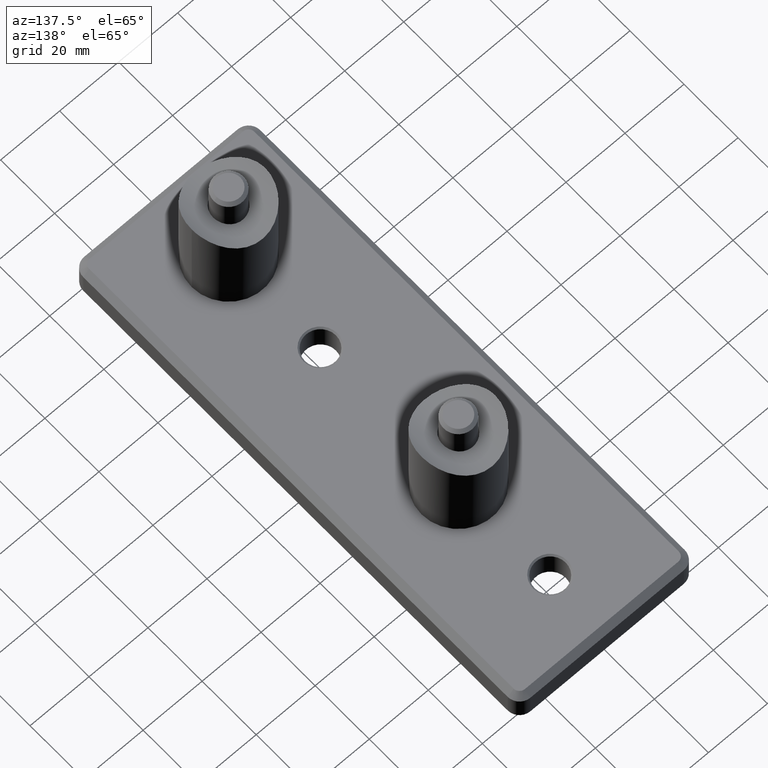
[diagram: clean part render]
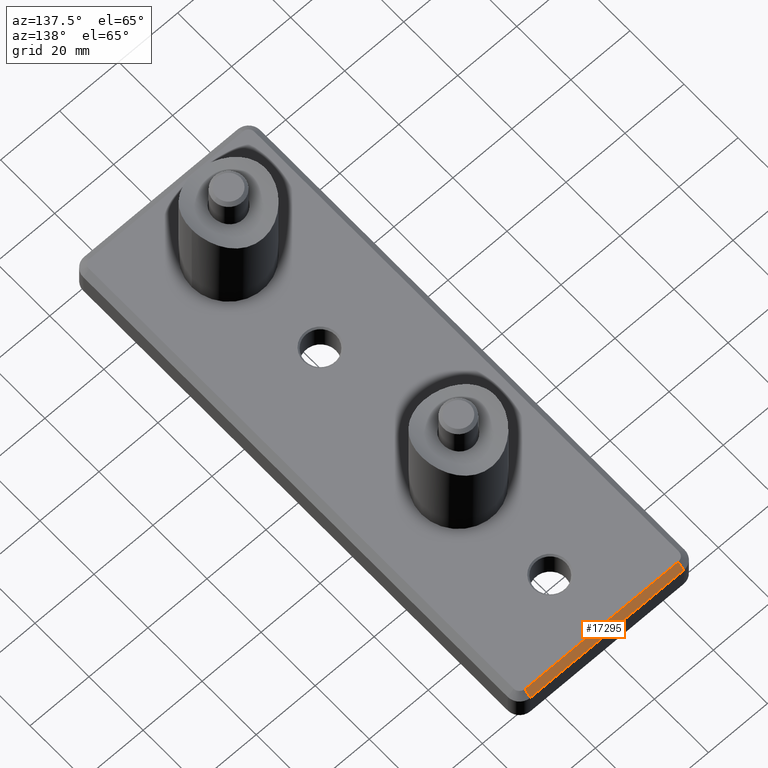
[diagram: same view with one face highlighted and labeled with its STEP entity id]
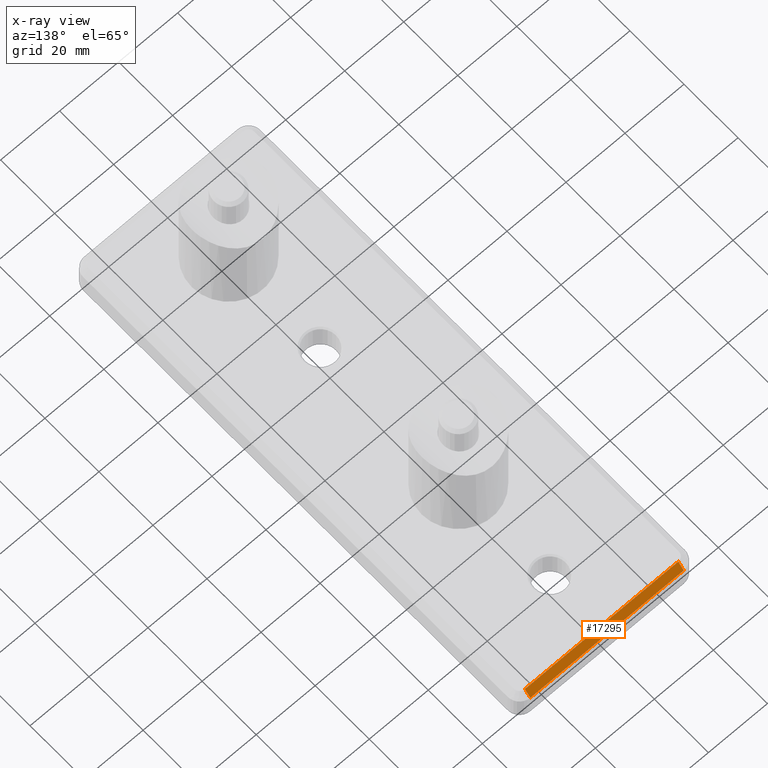
[diagram: x-ray of the same camera — body ghosted, the highlighted face saturated]
A machine part, auxiliary view. The second image highlights one B-rep face of the part: STEP entity #17295.
The next image is the same camera in x-ray: the body ghosted, the highlighted face saturated — about 0% of this face is hidden behind the body in this view.
In plain terms, the highlighted planar face has unit normal (0, 0.7071, 0.7071).
Its self-contained STEP definition (entity closure, byte-faithful):
#137 = EDGE_CURVE ( 'NONE', #20307, #6017, #17592, .T. ) ;
#166 = CARTESIAN_POINT ( 'NONE',  ( 26.00000000000000000, 80.50000000000000000, 10.00000000000000000 ) ) ;
#1595 = AXIS2_PLACEMENT_3D ( 'NONE', #1802, #8075, #14236 ) ;
#1802 = CARTESIAN_POINT ( 'NONE',  ( 0.000000000000000000, 80.50000000000001421, 10.00000000000000000 ) ) ;
#3274 = ORIENTED_EDGE ( 'NONE', *, *, #18765, .T. ) ;
#3536 = DIRECTION ( 'NONE',  ( 0.000000000000000000, 0.7071067811865451302, -0.7071067811865500152 ) ) ;
#4503 = VECTOR ( 'NONE', #5786, 1000.000000000000000 ) ;
#5786 = DIRECTION ( 'NONE',  ( -1.000000000000000000, 0.000000000000000000, -0.000000000000000000 ) ) ;
#6017 = VERTEX_POINT ( 'NONE', #10477 ) ;
#6306 = VECTOR ( 'NONE', #3536, 1000.000000000000114 ) ;
#8041 = VECTOR ( 'NONE', #16763, 1000.000000000000114 ) ;
#8075 = DIRECTION ( 'NONE',  ( -0.000000000000000000, 0.7071067811865500152, 0.7071067811865451302 ) ) ;
#8300 = ORIENTED_EDGE ( 'NONE', *, *, #137, .F. ) ;
#8690 = ORIENTED_EDGE ( 'NONE', *, *, #18233, .T. ) ;
#8774 = LINE ( 'NONE', #166, #6306 ) ;
#8838 = CARTESIAN_POINT ( 'NONE',  ( 26.00000000000000000, 80.50000000000000000, 10.00000000000000000 ) ) ;
#9782 = LINE ( 'NONE', #13740, #8041 ) ;
#10035 = CARTESIAN_POINT ( 'NONE',  ( -25.99999999999999645, 82.50000000000000000, 7.999999999999984901 ) ) ;
#10306 = EDGE_LOOP ( 'NONE', ( #3274, #16948, #8690, #8300 ) ) ;
#10477 = CARTESIAN_POINT ( 'NONE',  ( -25.99999999999999645, 80.50000000000001421, 10.00000000000000000 ) ) ;
#11730 = CARTESIAN_POINT ( 'NONE',  ( 26.00000000000000000, 82.50000000000000000, 7.999999999999984901 ) ) ;
#13676 = CARTESIAN_POINT ( 'NONE',  ( -25.99999999999999645, 80.50000000000001421, 10.00000000000000000 ) ) ;
#13740 = CARTESIAN_POINT ( 'NONE',  ( -25.99999999999999645, 82.50000000000000000, 7.999999999999984901 ) ) ;
#14236 = DIRECTION ( 'NONE',  ( 1.000000000000000000, 0.000000000000000000, 0.000000000000000000 ) ) ;
#14807 = VERTEX_POINT ( 'NONE', #11730 ) ;
#16432 = LINE ( 'NONE', #17422, #18932 ) ;
#16763 = DIRECTION ( 'NONE',  ( 0.000000000000000000, -0.7071067811865451302, 0.7071067811865500152 ) ) ;
#16948 = ORIENTED_EDGE ( 'NONE', *, *, #18615, .F. ) ;
#17148 = DIRECTION ( 'NONE',  ( 1.000000000000000000, 0.000000000000000000, 0.000000000000000000 ) ) ;
#17295 = ADVANCED_FACE ( 'NONE', ( #17676 ), #17461, .T. ) ;
#17422 = CARTESIAN_POINT ( 'NONE',  ( 26.00000000000000000, 82.50000000000000000, 7.999999999999998224 ) ) ;
#17461 = PLANE ( 'NONE',  #1595 ) ;
#17592 = LINE ( 'NONE', #13676, #4503 ) ;
#17676 = FACE_OUTER_BOUND ( 'NONE', #10306, .T. ) ;
#18233 = EDGE_CURVE ( 'NONE', #19300, #6017, #9782, .T. ) ;
#18615 = EDGE_CURVE ( 'NONE', #19300, #14807, #16432, .T. ) ;
#18765 = EDGE_CURVE ( 'NONE', #20307, #14807, #8774, .T. ) ;
#18932 = VECTOR ( 'NONE', #17148, 1000.000000000000000 ) ;
#19300 = VERTEX_POINT ( 'NONE', #10035 ) ;
#20307 = VERTEX_POINT ( 'NONE', #8838 ) ;